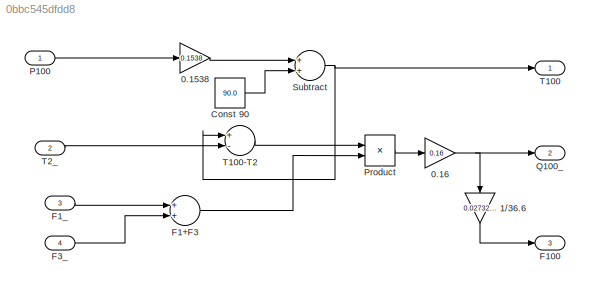
MODEL slx_0bbc545dfdd8
KIND model
CONFIG AbsTol = auto
CONFIG EnableMultiTasking = off
CONFIG FixedStep = auto
CONFIG MaxStep = auto
CONFIG MinStep = auto
CONFIG RelTol = 1e-3
CONFIG SampleTimeConstraint = Unconstrained
CONFIG Solver = VariableStepAuto
CONFIG SolverName = VariableStepAuto
CONFIG StartTime = 0.0
CONFIG StopTime = 1000.0
BLOCK [Gain] 0.1538
  Gain = 0.1538
  OutDataTypeStr = Inherit: Inherit via internal rule
  ParamDataTypeStr = Inherit: Inherit via internal rule
  SaturateOnIntegerOverflow = off
BLOCK [Gain] 0.16
  Gain = 0.16
  OutDataTypeStr = Inherit: Inherit via internal rule
  ParamDataTypeStr = Inherit: Inherit via internal rule
  SaturateOnIntegerOverflow = off
BLOCK [Gain] 1//36.6
  Gain = 0.02732240437
  OutDataTypeStr = Inherit: Inherit via internal rule
  ParamDataTypeStr = Inherit: Inherit via internal rule
  SaturateOnIntegerOverflow = off
BLOCK [Constant] Const 90
  Value = 90.0
BLOCK [Sum] F1+F3
  InputSameDT = off
  OutDataTypeStr = Inherit: Inherit via internal rule
  Ports = [2, 1]
  SaturateOnIntegerOverflow = off
BLOCK [Outport] F100
  IconDisplay = Port number
  Port = 3
BLOCK [Inport] F1_
  IconDisplay = Port number
  Port = 3
BLOCK [Inport] F3_
  IconDisplay = Port number
  Port = 4
BLOCK [Inport] P100
  IconDisplay = Port number
BLOCK [Product] Product
  InputSameDT = off
  OutDataTypeStr = Inherit: Inherit via internal rule
  Ports = [2, 1]
  RndMeth = Floor
  SaturateOnIntegerOverflow = off
BLOCK [Outport] Q100_
  IconDisplay = Port number
  Port = 2
BLOCK [Sum] Subtract
  InputSameDT = off
  OutDataTypeStr = Inherit: Inherit via internal rule
  Ports = [2, 1]
  SaturateOnIntegerOverflow = off
BLOCK [Outport] T100
  IconDisplay = Port number
BLOCK [Sum] T100-T2
  InputSameDT = off
  Inputs = +-
  OutDataTypeStr = Inherit: Inherit via internal rule
  Ports = [2, 1]
  SaturateOnIntegerOverflow = off
BLOCK [Inport] T2_
  IconDisplay = Port number
  Port = 2
LINE 0.1538:1 -> Subtract:1
NET 0.16:1 -> 1//36.6:1, Q100_:1
LINE 1//36.6:1 -> F100:1
LINE Const 90:1 -> Subtract:2
LINE F1+F3:1 -> Product:2
LINE F1_:1 -> F1+F3:1
LINE F3_:1 -> F1+F3:2
LINE P100:1 -> 0.1538:1
LINE Product:1 -> 0.16:1
NET Subtract:1 -> T100-T2:1, T100:1
LINE T100-T2:1 -> Product:1
LINE T2_:1 -> T100-T2:2
note: NET lines group one-source signal fan-out (src -> all destinations, sorted); 1:1 wires keep LINE
